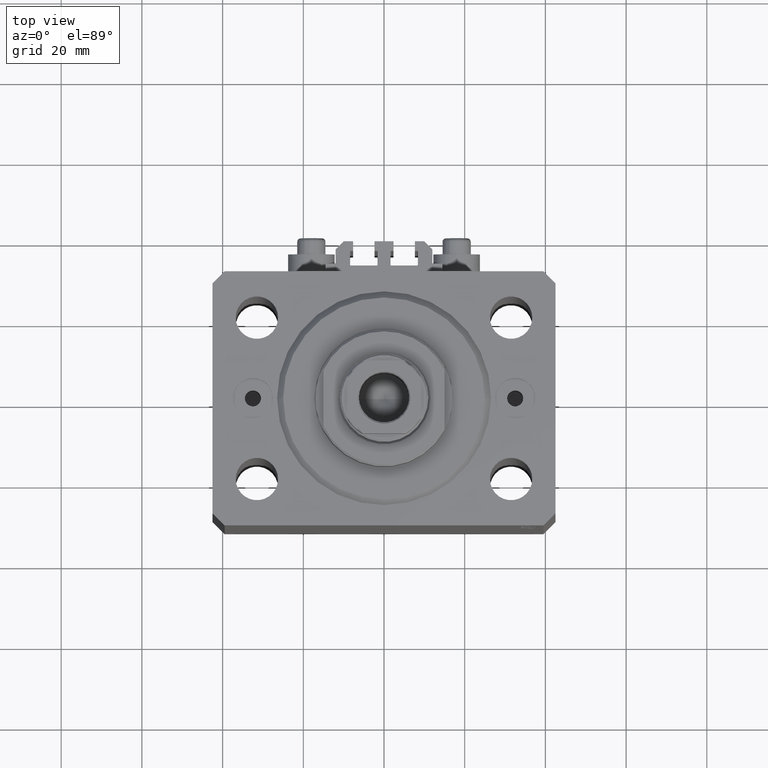
[diagram: clean part render]
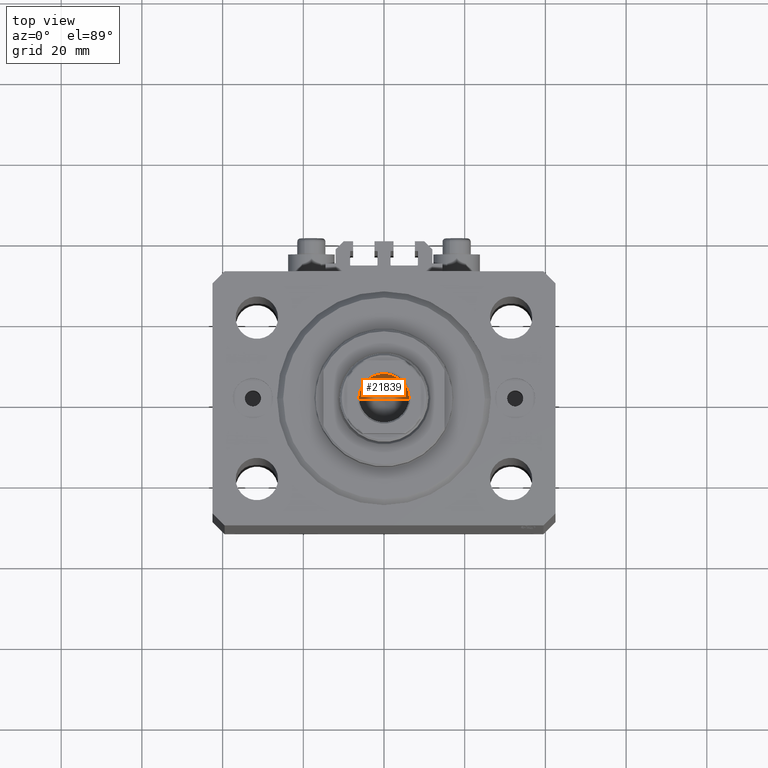
[diagram: same view with one face highlighted and labeled with its STEP entity id]
A machine part, top view. The second image highlights one B-rep face of the part: STEP entity #21839.
In plain terms, the highlighted conical surface has half-angle 59 deg.
Its self-contained STEP definition (entity closure, byte-faithful):
#1574 = EDGE_LOOP ( 'NONE', ( #28843, #10546, #5179 ) ) ;
#5179 = ORIENTED_EDGE ( 'NONE', *, *, #35705, .T. ) ;
#6549 = CARTESIAN_POINT ( 'NONE',  ( -7.434177670704979810E-15, 0.000000000000000000, 102.8446211310777443 ) ) ;
#6881 = VECTOR ( 'NONE', #42172, 1000.000000000000000 ) ;
#7106 = LINE ( 'NONE', #21440, #28704 ) ;
#7435 = VERTEX_POINT ( 'NONE', #27626 ) ;
#8288 = CONICAL_SURFACE ( 'NONE', #44846, 6.249999999999993783, 1.029744258676652979 ) ;
#9473 = VERTEX_POINT ( 'NONE', #27755 ) ;
#9513 = DIRECTION ( 'NONE',  ( -0.000000000000000000, -0.000000000000000000, 1.000000000000000000 ) ) ;
#10546 = ORIENTED_EDGE ( 'NONE', *, *, #20121, .T. ) ;
#13149 = DIRECTION ( 'NONE',  ( 1.000000000000000000, 0.000000000000000000, 0.000000000000000000 ) ) ;
#13322 = DIRECTION ( 'NONE',  ( 1.000000000000000000, 0.000000000000000000, 0.000000000000000000 ) ) ;
#14123 = EDGE_CURVE ( 'NONE', #18553, #7435, #7106, .T. ) ;
#17084 = AXIS2_PLACEMENT_3D ( 'NONE', #24298, #9513, #13322 ) ;
#17393 = DIRECTION ( 'NONE',  ( -0.8571673007021115565, 1.049727191138617710E-16, 0.5150380749100554878 ) ) ;
#18553 = VERTEX_POINT ( 'NONE', #6549 ) ;
#19550 = CARTESIAN_POINT ( 'NONE',  ( 6.249999999999993783, 0.000000000000000000, 106.5999999999999943 ) ) ;
#20121 = EDGE_CURVE ( 'NONE', #18553, #9473, #23596, .T. ) ;
#21440 = CARTESIAN_POINT ( 'NONE',  ( -6.249999999999993783, 7.654042494670949718E-16, 106.5999999999999943 ) ) ;
#21839 = ADVANCED_FACE ( 'NONE', ( #34861 ), #8288, .F. ) ;
#23596 = LINE ( 'NONE', #19550, #6881 ) ;
#24298 = CARTESIAN_POINT ( 'NONE',  ( 0.000000000000000000, 0.000000000000000000, 106.5999999999999943 ) ) ;
#27626 = CARTESIAN_POINT ( 'NONE',  ( -6.249999999999993783, 7.654042494670949718E-16, 106.5999999999999943 ) ) ;
#27755 = CARTESIAN_POINT ( 'NONE',  ( 6.249999999999993783, 0.000000000000000000, 106.5999999999999943 ) ) ;
#28704 = VECTOR ( 'NONE', #17393, 1000.000000000000000 ) ;
#28843 = ORIENTED_EDGE ( 'NONE', *, *, #14123, .F. ) ;
#34386 = DIRECTION ( 'NONE',  ( -0.000000000000000000, -0.000000000000000000, 1.000000000000000000 ) ) ;
#34861 = FACE_OUTER_BOUND ( 'NONE', #1574, .T. ) ;
#35705 = EDGE_CURVE ( 'NONE', #9473, #7435, #39170, .T. ) ;
#39170 = CIRCLE ( 'NONE', #17084, 6.249999999999993783 ) ;
#42172 = DIRECTION ( 'NONE',  ( 0.8571673007021115565, 0.000000000000000000, 0.5150380749100554878 ) ) ;
#44846 = AXIS2_PLACEMENT_3D ( 'NONE', #45115, #34386, #13149 ) ;
#45115 = CARTESIAN_POINT ( 'NONE',  ( 0.000000000000000000, 0.000000000000000000, 106.5999999999999943 ) ) ;